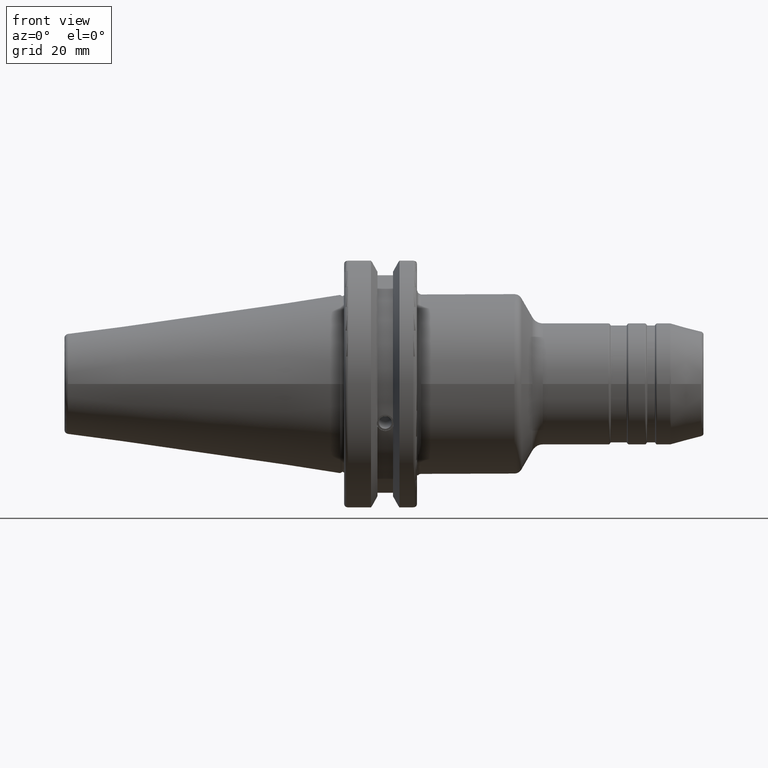
[diagram: clean part render]
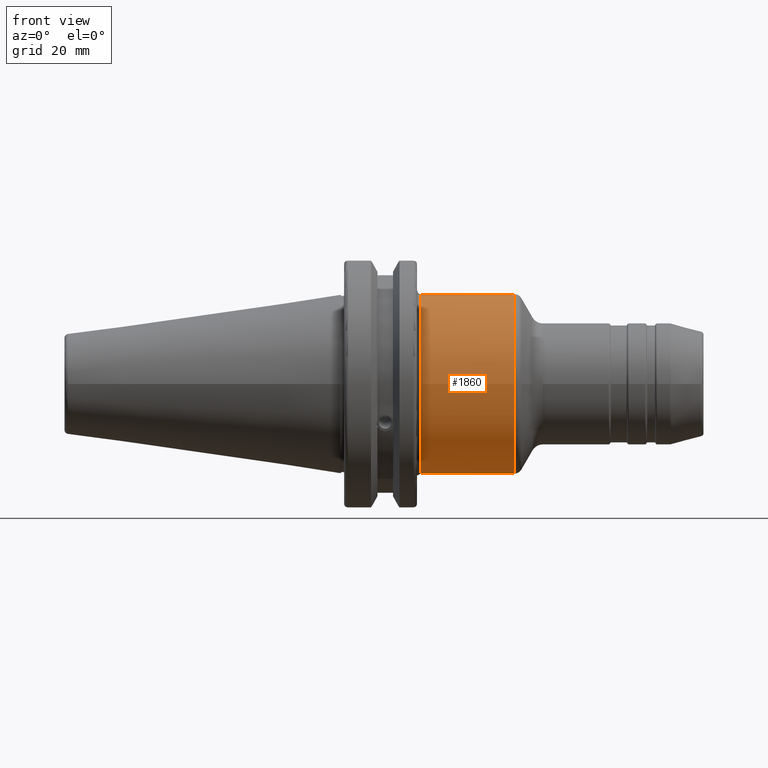
[diagram: same view with one face highlighted and labeled with its STEP entity id]
A machine part, front view. The second image highlights one B-rep face of the part: STEP entity #1860.
In plain terms, the highlighted cylindrical surface (bore or boss wall) has radius 22.25 mm, axis along (1, 0, 0).
Its self-contained STEP definition (entity closure, byte-faithful):
#86=CYLINDRICAL_SURFACE('',#2010,22.25);
#172=LINE('',#2906,#267);
#267=VECTOR('',#2302,22.25);
#386=FACE_OUTER_BOUND('',#495,.T.);
#495=EDGE_LOOP('',(#1275,#1276,#1277,#1278,#1279,#1280));
#627=CIRCLE('',#2008,22.25);
#628=CIRCLE('',#2009,22.25);
#629=CIRCLE('',#2011,22.25);
#630=CIRCLE('',#2012,22.25);
#757=VERTEX_POINT('',#2899);
#758=VERTEX_POINT('',#2901);
#759=VERTEX_POINT('',#2905);
#760=VERTEX_POINT('',#2907);
#960=EDGE_CURVE('',#757,#758,#627,.T.);
#961=EDGE_CURVE('',#758,#757,#628,.T.);
#962=EDGE_CURVE('',#758,#759,#172,.T.);
#963=EDGE_CURVE('',#760,#759,#629,.T.);
#964=EDGE_CURVE('',#759,#760,#630,.T.);
#1275=ORIENTED_EDGE('',*,*,#961,.F.);
#1276=ORIENTED_EDGE('',*,*,#962,.T.);
#1277=ORIENTED_EDGE('',*,*,#963,.F.);
#1278=ORIENTED_EDGE('',*,*,#964,.F.);
#1279=ORIENTED_EDGE('',*,*,#962,.F.);
#1280=ORIENTED_EDGE('',*,*,#960,.F.);
#1860=ADVANCED_FACE('',(#386),#86,.T.);
#2008=AXIS2_PLACEMENT_3D('',#2902,#2296,#2297);
#2009=AXIS2_PLACEMENT_3D('',#2903,#2298,#2299);
#2010=AXIS2_PLACEMENT_3D('',#2904,#2300,#2301);
#2011=AXIS2_PLACEMENT_3D('',#2908,#2303,#2304);
#2012=AXIS2_PLACEMENT_3D('',#2909,#2305,#2306);
#2296=DIRECTION('center_axis',(1.,0.,0.));
#2297=DIRECTION('ref_axis',(0.,-1.,1.83697019872103E-16));
#2298=DIRECTION('center_axis',(1.,0.,0.));
#2299=DIRECTION('ref_axis',(0.,-1.,1.83697019872103E-16));
#2300=DIRECTION('center_axis',(1.,0.,0.));
#2301=DIRECTION('ref_axis',(0.,1.,0.));
#2302=DIRECTION('',(-1.,0.,0.));
#2303=DIRECTION('center_axis',(-1.,0.,0.));
#2304=DIRECTION('ref_axis',(0.,-1.,-1.22464679914735E-16));
#2305=DIRECTION('center_axis',(-1.,0.,0.));
#2306=DIRECTION('ref_axis',(0.,-1.,-1.22464679914735E-16));
#2899=CARTESIAN_POINT('',(43.159510009996,-2.72483912810286E-15,22.25));
#2901=CARTESIAN_POINT('',(43.159510009996,-22.25,-2.72483912810286E-15));
#2902=CARTESIAN_POINT('Origin',(43.159510009996,0.,0.));
#2903=CARTESIAN_POINT('Origin',(43.159510009996,0.,0.));
#2904=CARTESIAN_POINT('Origin',(31.6821052741876,0.,0.));
#2905=CARTESIAN_POINT('',(20.05,-22.25,-2.72483912810286E-15));
#2906=CARTESIAN_POINT('',(31.6821052741876,-22.25,-2.72483912810286E-15));
#2907=CARTESIAN_POINT('',(20.05,-2.72483912810286E-15,-22.25));
#2908=CARTESIAN_POINT('Origin',(20.05,0.,0.));
#2909=CARTESIAN_POINT('Origin',(20.05,0.,0.));